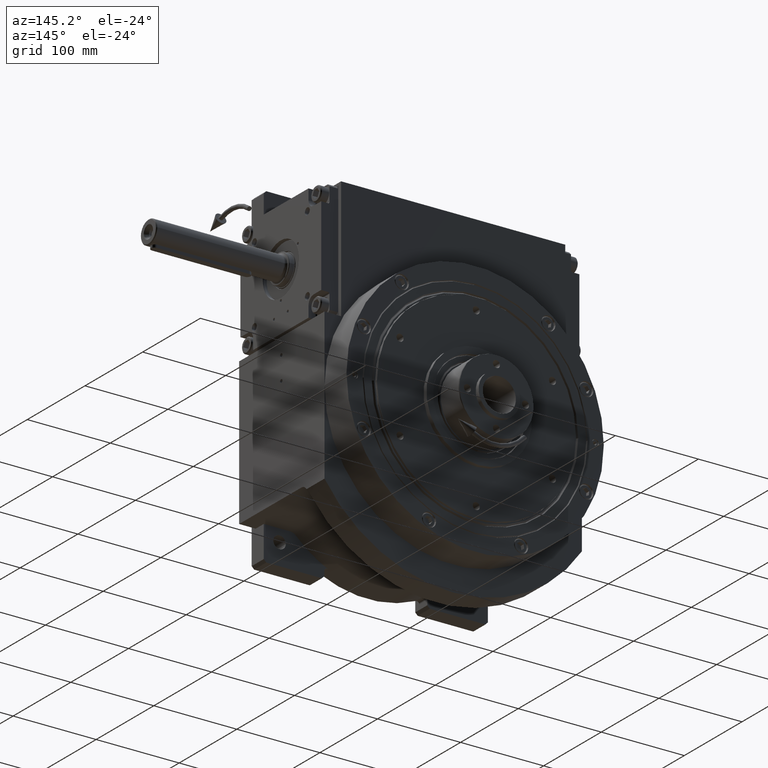
[diagram: clean part render]
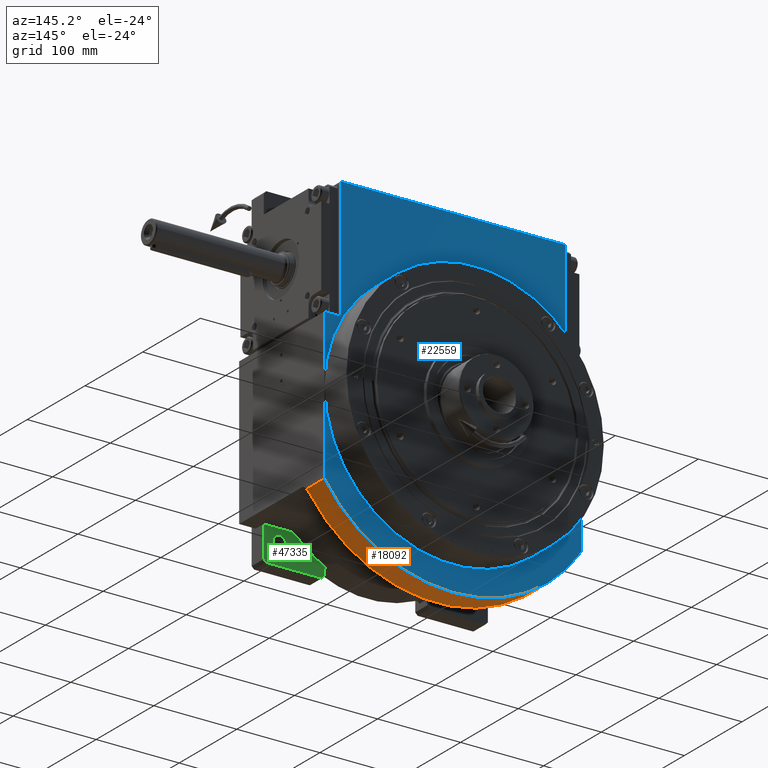
[diagram: same view with three faces highlighted in distinct colors, each labeled with its STEP entity id]
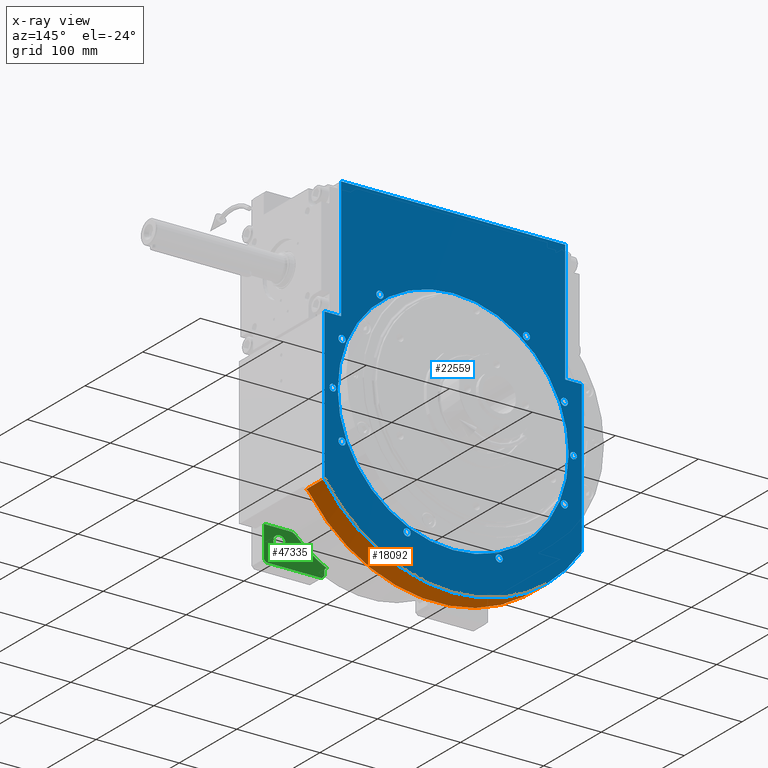
[diagram: x-ray of the same camera — body ghosted, the three highlighted faces saturated]
A machine part, auxiliary view with three faces highlighted in distinct colors.
The next image is the same camera in x-ray (body ghosted, the three faces saturated) — at least one of them is partly hidden behind the body in this view.
Their STEP definitions:

[orange] entity #18092 — the highlighted cylindrical surface (partial cylindrical patch) has radius 185 mm, axis along (0, -1, 0).
#199 = CARTESIAN_POINT ( 'NONE',  ( 0.000000000000000000, 45.00000000000000000, 0.000000000000000000 ) ) ;
#2167 = AXIS2_PLACEMENT_3D ( 'NONE', #2490, #18874, #14610 ) ;
#2490 = CARTESIAN_POINT ( 'NONE',  ( -1.421085471520200056E-14, 75.00000000000000000, 0.000000000000000000 ) ) ;
#3414 = EDGE_CURVE ( 'NONE', #70117, #44482, #34901, .T. ) ;
#3759 = CARTESIAN_POINT ( 'NONE',  ( -155.0000000000000000, 43.65739391084900234, -100.9950493836208096 ) ) ;
#4890 = ORIENTED_EDGE ( 'NONE', *, *, #28996, .T. ) ;
#5717 = DIRECTION ( 'NONE',  ( 1.000000000000000000, 0.000000000000000000, 0.000000000000000000 ) ) ;
#8505 = AXIS2_PLACEMENT_3D ( 'NONE', #53541, #10355, #5717 ) ;
#8507 = EDGE_CURVE ( 'NONE', #36504, #38941, #12736, .T. ) ;
#8683 = EDGE_LOOP ( 'NONE', ( #30133, #10770, #4890, #28166, #38365, #17155 ) ) ;
#9814 = CARTESIAN_POINT ( 'NONE',  ( -153.9568177392173709, 44.56504649577900778, -102.5960511298264777 ) ) ;
#10355 = DIRECTION ( 'NONE',  ( 0.000000000000000000, -1.000000000000000000, 0.000000000000000000 ) ) ;
#10770 = ORIENTED_EDGE ( 'NONE', *, *, #19712, .F. ) ;
#12736 = LINE ( 'NONE', #39869, #52070 ) ;
#14610 = DIRECTION ( 'NONE',  ( 0.8378378378378376068, 0.000000000000000000, -0.5459191858574098388 ) ) ;
#15597 = CARTESIAN_POINT ( 'NONE',  ( 155.0000000000000000, 43.65739391084900234, -100.9950493836205965 ) ) ;
#17155 = ORIENTED_EDGE ( 'NONE', *, *, #8507, .T. ) ;
#18092 = ADVANCED_FACE ( 'NONE', ( #31777 ), #21393, .T. ) ;
#18555 = CARTESIAN_POINT ( 'NONE',  ( 152.8331255023750543, 45.01257560629866106, -104.2665302782841650 ) ) ;
#18874 = DIRECTION ( 'NONE',  ( 0.000000000000000000, 1.000000000000000000, 0.000000000000000000 ) ) ;
#19712 = EDGE_CURVE ( 'NONE', #59823, #29238, #25945, .T. ) ;
#20590 = CARTESIAN_POINT ( 'NONE',  ( -155.0000000000000000, 43.65739391084900234, -100.9950493836208096 ) ) ;
#21393 = CYLINDRICAL_SURFACE ( 'NONE', #8505, 185.0000000000000000 ) ;
#22405 = CARTESIAN_POINT ( 'NONE',  ( 155.0000000000000000, 43.65739391084900234, -100.9950493836208096 ) ) ;
#23201 = CARTESIAN_POINT ( 'NONE',  ( 151.6212386178135034, 45.00000000000000000, -106.0000000000000000 ) ) ;
#25945 = LINE ( 'NONE', #15597, #41659 ) ;
#28166 = ORIENTED_EDGE ( 'NONE', *, *, #3414, .T. ) ;
#28996 = EDGE_CURVE ( 'NONE', #59823, #70117, #34010, .T. ) ;
#29208 = AXIS2_PLACEMENT_3D ( 'NONE', #199, #59771, #59428 ) ;
#29238 = VERTEX_POINT ( 'NONE', #59807 ) ;
#30133 = ORIENTED_EDGE ( 'NONE', *, *, #46047, .F. ) ;
#30603 = CARTESIAN_POINT ( 'NONE',  ( 155.0000000000000000, 43.65739391084900234, -100.9950493836208096 ) ) ;
#31777 = FACE_OUTER_BOUND ( 'NONE', #8683, .T. ) ;
#32295 = CARTESIAN_POINT ( 'NONE',  ( -152.8331263068003523, 45.01258185882932850, -104.2665291276430537 ) ) ;
#32955 = CIRCLE ( 'NONE', #2167, 185.0000000000000853 ) ;
#34010 = B_SPLINE_CURVE_WITH_KNOTS ( 'NONE', 3,
 ( #30603, #44617, #18555, #23201 ),
 .UNSPECIFIED., .F., .F.,
 ( 4, 4 ),
 ( 0.000000000000000000, 1.000000000000000000 ),
 .UNSPECIFIED. ) ;
#34901 = CIRCLE ( 'NONE', #29208, 185.0000000000000000 ) ;
#36468 = CARTESIAN_POINT ( 'NONE',  ( -151.6212386178135034, 45.00000000000000000, -106.0000000000000000 ) ) ;
#36504 = VERTEX_POINT ( 'NONE', #20590 ) ;
#38195 = EDGE_CURVE ( 'NONE', #44482, #36504, #43324, .T. ) ;
#38365 = ORIENTED_EDGE ( 'NONE', *, *, #38195, .T. ) ;
#38941 = VERTEX_POINT ( 'NONE', #55354 ) ;
#39869 = CARTESIAN_POINT ( 'NONE',  ( -155.0000000000000000, 43.65739391084900234, -100.9950493836205965 ) ) ;
#41659 = VECTOR ( 'NONE', #47710, 1000.000000000000000 ) ;
#43324 = B_SPLINE_CURVE_WITH_KNOTS ( 'NONE', 3,
 ( #59034, #32295, #9814, #3759 ),
 .UNSPECIFIED., .F., .F.,
 ( 4, 4 ),
 ( 0.000000000000000000, 1.000000000000000000 ),
 .UNSPECIFIED. ) ;
#44147 = DIRECTION ( 'NONE',  ( 0.000000000000000000, 1.000000000000000000, 0.000000000000000000 ) ) ;
#44482 = VERTEX_POINT ( 'NONE', #36468 ) ;
#44617 = CARTESIAN_POINT ( 'NONE',  ( 153.9568169727738507, 44.56504024324833324, -102.5960523061092573 ) ) ;
#46047 = EDGE_CURVE ( 'NONE', #29238, #38941, #32955, .T. ) ;
#47710 = DIRECTION ( 'NONE',  ( 0.000000000000000000, 1.000000000000000000, -9.068074731744140484E-16 ) ) ;
#52070 = VECTOR ( 'NONE', #44147, 1000.000000000000000 ) ;
#53541 = CARTESIAN_POINT ( 'NONE',  ( -2.057655180072804513E-28, -73.00000000000000000, 0.000000000000000000 ) ) ;
#55354 = CARTESIAN_POINT ( 'NONE',  ( -155.0000000000000000, 75.00000000000000000, -100.9950493836208096 ) ) ;
#59034 = CARTESIAN_POINT ( 'NONE',  ( -151.6212386178135034, 45.00000000000000000, -106.0000000000000000 ) ) ;
#59428 = DIRECTION ( 'NONE',  ( 0.8195742627989930362, 0.000000000000000000, -0.5729729729729730048 ) ) ;
#59771 = DIRECTION ( 'NONE',  ( 0.000000000000000000, 1.000000000000000000, 0.000000000000000000 ) ) ;
#59807 = CARTESIAN_POINT ( 'NONE',  ( 155.0000000000000000, 75.00000000000000000, -100.9950493836208096 ) ) ;
#59823 = VERTEX_POINT ( 'NONE', #22405 ) ;
#65989 = CARTESIAN_POINT ( 'NONE',  ( 151.6212386178135034, 45.00000000000000000, -106.0000000000000000 ) ) ;
#70117 = VERTEX_POINT ( 'NONE', #65989 ) ;

[blue] entity #22559 — the highlighted planar face has unit normal (0, 1, 0).
#363 = FACE_BOUND ( 'NONE', #5491, .T. ) ;
#480 = DIRECTION ( 'NONE',  ( 1.000000000000000000, 0.000000000000000000, 0.000000000000000000 ) ) ;
#707 = CARTESIAN_POINT ( 'NONE',  ( 0.000000000000000000, 75.00000000000000000, 0.000000000000000000 ) ) ;
#791 = VERTEX_POINT ( 'NONE', #60141 ) ;
#1168 = ORIENTED_EDGE ( 'NONE', *, *, #45067, .F. ) ;
#1261 = VERTEX_POINT ( 'NONE', #66455 ) ;
#1560 = EDGE_CURVE ( 'NONE', #28162, #25965, #47200, .T. ) ;
#1706 = VECTOR ( 'NONE', #18986, 1000.000000000000000 ) ;
#2167 = AXIS2_PLACEMENT_3D ( 'NONE', #2490, #18874, #14610 ) ;
#2490 = CARTESIAN_POINT ( 'NONE',  ( -1.421085471520200056E-14, 75.00000000000000000, 0.000000000000000000 ) ) ;
#3020 = CARTESIAN_POINT ( 'NONE',  ( -51.23909769293799599, 75.00000000000000000, -133.9625322141366155 ) ) ;
#3077 = VECTOR ( 'NONE', #42917, 1000.000000000000000 ) ;
#3307 = EDGE_CURVE ( 'NONE', #38327, #24456, #28032, .T. ) ;
#3441 = VERTEX_POINT ( 'NONE', #5919 ) ;
#3495 = AXIS2_PLACEMENT_3D ( 'NONE', #60307, #48187, #37862 ) ;
#3510 = ORIENTED_EDGE ( 'NONE', *, *, #61200, .F. ) ;
#3834 = DIRECTION ( 'NONE',  ( 0.000000000000000000, 1.000000000000000000, 0.000000000000000000 ) ) ;
#3867 = AXIS2_PLACEMENT_3D ( 'NONE', #6151, #27916, #60015 ) ;
#4011 = AXIS2_PLACEMENT_3D ( 'NONE', #31231, #52993, #25502 ) ;
#4167 = EDGE_LOOP ( 'NONE', ( #4284, #59257 ) ) ;
#4284 = ORIENTED_EDGE ( 'NONE', *, *, #27402, .F. ) ;
#4404 = ORIENTED_EDGE ( 'NONE', *, *, #50722, .F. ) ;
#4437 = CARTESIAN_POINT ( 'NONE',  ( -145.0000000000000000, 75.00000000000000000, 0.000000000000000000 ) ) ;
#4619 = CARTESIAN_POINT ( 'NONE',  ( 55.48909769293800309, 75.00000000000000000, -133.9625322141366155 ) ) ;
#4719 = EDGE_CURVE ( 'NONE', #21421, #52695, #64816, .T. ) ;
#4845 = ORIENTED_EDGE ( 'NONE', *, *, #20522, .F. ) ;
#4963 = DIRECTION ( 'NONE',  ( 0.000000000000000000, 1.000000000000000000, 0.000000000000000000 ) ) ;
#5046 = DIRECTION ( 'NONE',  ( 1.000000000000000000, 0.000000000000000000, 0.000000000000000000 ) ) ;
#5491 = EDGE_LOOP ( 'NONE', ( #14094, #56507 ) ) ;
#5678 = DIRECTION ( 'NONE',  ( 0.000000000000000000, 1.000000000000000000, 0.000000000000000000 ) ) ;
#5919 = CARTESIAN_POINT ( 'NONE',  ( 155.0000000000000000, 75.00000000000000000, 80.00000000000000000 ) ) ;
#6013 = DIRECTION ( 'NONE',  ( 1.000000000000000000, 0.000000000000000000, -6.530723674265620862E-15 ) ) ;
#6077 = FACE_BOUND ( 'NONE', #68510, .T. ) ;
#6151 = CARTESIAN_POINT ( 'NONE',  ( 55.48909769293800309, 75.00000000000000000, -133.9625322141366155 ) ) ;
#6840 = DIRECTION ( 'NONE',  ( 0.000000000000000000, 1.000000000000000000, 0.000000000000000000 ) ) ;
#6974 = DIRECTION ( 'NONE',  ( 0.000000000000000000, 1.000000000000000000, 0.000000000000000000 ) ) ;
#6975 = DIRECTION ( 'NONE',  ( 0.000000000000000000, 1.000000000000000000, 0.000000000000000000 ) ) ;
#7011 = DIRECTION ( 'NONE',  ( 0.000000000000000000, 1.000000000000000000, 0.000000000000000000 ) ) ;
#7580 = DIRECTION ( 'NONE',  ( 0.000000000000000000, 0.000000000000000000, 1.000000000000000000 ) ) ;
#7923 = AXIS2_PLACEMENT_3D ( 'NONE', #4437, #26187, #69699 ) ;
#8412 = ORIENTED_EDGE ( 'NONE', *, *, #29342, .F. ) ;
#8647 = VECTOR ( 'NONE', #45526, 1000.000000000000000 ) ;
#9384 = VERTEX_POINT ( 'NONE', #21876 ) ;
#9891 = AXIS2_PLACEMENT_3D ( 'NONE', #18311, #40415, #33676 ) ;
#10024 = FACE_BOUND ( 'NONE', #10962, .T. ) ;
#10033 = CIRCLE ( 'NONE', #19115, 4.250000000000003553 ) ;
#10468 = CARTESIAN_POINT ( 'NONE',  ( 0.000000000000000000, 75.00000000000000000, -6.992960125521008625E-15 ) ) ;
#10553 = EDGE_CURVE ( 'NONE', #52695, #60790, #46216, .T. ) ;
#10591 = CARTESIAN_POINT ( 'NONE',  ( -88.27040720626449399, 75.00000000000000000, 115.0362343422289939 ) ) ;
#10706 = FACE_OUTER_BOUND ( 'NONE', #34912, .T. ) ;
#10962 = EDGE_LOOP ( 'NONE', ( #29212, #60971 ) ) ;
#11175 = DIRECTION ( 'NONE',  ( 0.000000000000000000, 0.000000000000000000, 1.000000000000000000 ) ) ;
#11229 = EDGE_CURVE ( 'NONE', #52781, #67625, #47125, .T. ) ;
#11584 = VECTOR ( 'NONE', #7580, 1000.000000000000000 ) ;
#11612 = CARTESIAN_POINT ( 'NONE',  ( -135.0000000000000000, 75.00000000000000000, 80.00000000000000000 ) ) ;
#11847 = DIRECTION ( 'NONE',  ( 0.000000000000000000, 0.000000000000000000, 1.000000000000000000 ) ) ;
#11899 = CARTESIAN_POINT ( 'NONE',  ( -129.7125322141366155, 75.00000000000000000, 55.48909769293800309 ) ) ;
#12597 = LINE ( 'NONE', #34035, #1706 ) ;
#13068 = AXIS2_PLACEMENT_3D ( 'NONE', #57854, #52874, #31117 ) ;
#14009 = CARTESIAN_POINT ( 'NONE',  ( -92.52040720626450820, 75.00000000000000000, 115.0362343422289939 ) ) ;
#14094 = ORIENTED_EDGE ( 'NONE', *, *, #32834, .F. ) ;
#14223 = CARTESIAN_POINT ( 'NONE',  ( 145.0000000000000000, 75.00000000000000000, -3.999999999999992450 ) ) ;
#14411 = AXIS2_PLACEMENT_3D ( 'NONE', #10468, #54357, #11847 ) ;
#14524 = EDGE_CURVE ( 'NONE', #62786, #20713, #28472, .T. ) ;
#14594 = VECTOR ( 'NONE', #28664, 1000.000000000000000 ) ;
#14610 = DIRECTION ( 'NONE',  ( 0.8378378378378376068, 0.000000000000000000, -0.5459191858574098388 ) ) ;
#15348 = DIRECTION ( 'NONE',  ( 1.000000000000000000, 0.000000000000000000, 0.000000000000000000 ) ) ;
#15445 = VERTEX_POINT ( 'NONE', #62703 ) ;
#15627 = AXIS2_PLACEMENT_3D ( 'NONE', #37164, #64620, #5046 ) ;
#15899 = ORIENTED_EDGE ( 'NONE', *, *, #52951, .F. ) ;
#15928 = CIRCLE ( 'NONE', #7923, 3.999999999999992450 ) ;
#16748 = FACE_BOUND ( 'NONE', #61589, .T. ) ;
#16770 = EDGE_CURVE ( 'NONE', #66410, #21158, #53334, .T. ) ;
#17089 = ORIENTED_EDGE ( 'NONE', *, *, #41845, .T. ) ;
#17246 = CIRCLE ( 'NONE', #44589, 4.250000000000003553 ) ;
#17677 = CARTESIAN_POINT ( 'NONE',  ( 133.9625322141366155, 75.00000000000000000, 55.48909769293800309 ) ) ;
#18279 = LINE ( 'NONE', #62131, #14594 ) ;
#18311 = CARTESIAN_POINT ( 'NONE',  ( -133.9625322141366155, 75.00000000000000000, 55.48909769293800309 ) ) ;
#18874 = DIRECTION ( 'NONE',  ( 0.000000000000000000, 1.000000000000000000, 0.000000000000000000 ) ) ;
#18986 = DIRECTION ( 'NONE',  ( 3.140606279253960088E-16, 0.000000000000000000, -1.000000000000000000 ) ) ;
#19115 = AXIS2_PLACEMENT_3D ( 'NONE', #54885, #4963, #43806 ) ;
#20160 = CARTESIAN_POINT ( 'NONE',  ( 145.0000000000000000, 75.00000000000000000, 3.999999999999992450 ) ) ;
#20522 = EDGE_CURVE ( 'NONE', #24456, #38327, #36123, .T. ) ;
#20713 = VERTEX_POINT ( 'NONE', #36840 ) ;
#20819 = ORIENTED_EDGE ( 'NONE', *, *, #61825, .F. ) ;
#21158 = VERTEX_POINT ( 'NONE', #47453 ) ;
#21163 = LINE ( 'NONE', #25441, #3077 ) ;
#21421 = VERTEX_POINT ( 'NONE', #30169 ) ;
#21876 = CARTESIAN_POINT ( 'NONE',  ( 135.0000000000000000, 75.00000000000000000, 80.00000000000000000 ) ) ;
#21904 = ORIENTED_EDGE ( 'NONE', *, *, #3307, .F. ) ;
#22559 = ADVANCED_FACE ( 'NONE', ( #363, #6077, #65648, #42816, #16748, #64239, #48518, #59586, #10024, #38539, #64968, #10706 ), #60290, .T. ) ;
#22956 = CIRCLE ( 'NONE', #50307, 4.250000000000003553 ) ;
#23348 = CIRCLE ( 'NONE', #13068, 4.250000000000003553 ) ;
#23543 = CARTESIAN_POINT ( 'NONE',  ( -155.0000000000000000, 75.00000000000000000, 80.00000000000000000 ) ) ;
#23701 = DIRECTION ( 'NONE',  ( 1.000000000000000000, 0.000000000000000000, 1.632680918566405215E-15 ) ) ;
#24456 = VERTEX_POINT ( 'NONE', #68976 ) ;
#24654 = ORIENTED_EDGE ( 'NONE', *, *, #32912, .F. ) ;
#24749 = VERTEX_POINT ( 'NONE', #14223 ) ;
#25368 = CARTESIAN_POINT ( 'NONE',  ( -135.0000000000000000, 75.00000000000000000, 226.0000000000000000 ) ) ;
#25433 = CIRCLE ( 'NONE', #52667, 4.250000000000003553 ) ;
#25441 = CARTESIAN_POINT ( 'NONE',  ( 135.0000000000000000, 75.00000000000000000, 80.00000000000000000 ) ) ;
#25502 = DIRECTION ( 'NONE',  ( -1.000000000000000000, 0.000000000000000000, -1.632680918566405215E-15 ) ) ;
#25761 = CARTESIAN_POINT ( 'NONE',  ( -84.02040720626449399, 75.00000000000000000, 115.0362343422289939 ) ) ;
#25920 = EDGE_LOOP ( 'NONE', ( #56345, #20819 ) ) ;
#25965 = VERTEX_POINT ( 'NONE', #54367 ) ;
#25975 = AXIS2_PLACEMENT_3D ( 'NONE', #57781, #52105, #58130 ) ;
#26187 = DIRECTION ( 'NONE',  ( 0.000000000000000000, 1.000000000000000000, -0.000000000000000000 ) ) ;
#26663 = CARTESIAN_POINT ( 'NONE',  ( -133.9625322141366155, 75.00000000000000000, -55.48909769293800309 ) ) ;
#26903 = EDGE_CURVE ( 'NONE', #25965, #28162, #17246, .T. ) ;
#27402 = EDGE_CURVE ( 'NONE', #38614, #60546, #22956, .T. ) ;
#27444 = CARTESIAN_POINT ( 'NONE',  ( -55.48909769293800309, 75.00000000000000000, -133.9625322141366155 ) ) ;
#27646 = EDGE_LOOP ( 'NONE', ( #4404, #3510 ) ) ;
#27916 = DIRECTION ( 'NONE',  ( 0.000000000000000000, 1.000000000000000000, 0.000000000000000000 ) ) ;
#27935 = CARTESIAN_POINT ( 'NONE',  ( 145.0000000000000000, 75.00000000000000000, 0.000000000000000000 ) ) ;
#28032 = CIRCLE ( 'NONE', #31454, 4.250000000000003553 ) ;
#28134 = DIRECTION ( 'NONE',  ( 1.000000000000000000, 0.000000000000000000, -6.530723674265620862E-15 ) ) ;
#28162 = VERTEX_POINT ( 'NONE', #3020 ) ;
#28472 = CIRCLE ( 'NONE', #46682, 4.250000000000003553 ) ;
#28664 = DIRECTION ( 'NONE',  ( 0.000000000000000000, 0.000000000000000000, -1.000000000000000000 ) ) ;
#28675 = LINE ( 'NONE', #45037, #11584 ) ;
#29212 = ORIENTED_EDGE ( 'NONE', *, *, #26903, .F. ) ;
#29238 = VERTEX_POINT ( 'NONE', #59807 ) ;
#29342 = EDGE_CURVE ( 'NONE', #62025, #63334, #25433, .T. ) ;
#29851 = CARTESIAN_POINT ( 'NONE',  ( 1.702259050814821084E-14, 75.00000000000000000, -139.0000000000000000 ) ) ;
#29863 = CARTESIAN_POINT ( 'NONE',  ( 84.02040720626449399, 75.00000000000000000, 115.0362343422289939 ) ) ;
#30019 = ORIENTED_EDGE ( 'NONE', *, *, #46047, .T. ) ;
#30169 = CARTESIAN_POINT ( 'NONE',  ( -135.0000000000000000, 75.00000000000000000, 80.00000000000000000 ) ) ;
#31029 = DIRECTION ( 'NONE',  ( -1.000000000000000000, 0.000000000000000000, 0.000000000000000000 ) ) ;
#31117 = DIRECTION ( 'NONE',  ( 1.000000000000000000, 0.000000000000000000, 1.632680918566405215E-15 ) ) ;
#31231 = CARTESIAN_POINT ( 'NONE',  ( 133.9625322141366155, 75.00000000000000000, -55.48909769293800309 ) ) ;
#31454 = AXIS2_PLACEMENT_3D ( 'NONE', #52344, #41959, #31630 ) ;
#31544 = CIRCLE ( 'NONE', #68001, 3.999999999999992450 ) ;
#31630 = DIRECTION ( 'NONE',  ( 1.000000000000000000, 0.000000000000000000, 1.632680918566405215E-15 ) ) ;
#31943 = ORIENTED_EDGE ( 'NONE', *, *, #10553, .T. ) ;
#32055 = ORIENTED_EDGE ( 'NONE', *, *, #16770, .F. ) ;
#32538 = EDGE_CURVE ( 'NONE', #39557, #24749, #54324, .T. ) ;
#32834 = EDGE_CURVE ( 'NONE', #58927, #69242, #65721, .T. ) ;
#32912 = EDGE_CURVE ( 'NONE', #24749, #39557, #31544, .T. ) ;
#32955 = CIRCLE ( 'NONE', #2167, 185.0000000000000853 ) ;
#33056 = DIRECTION ( 'NONE',  ( 0.000000000000000000, 0.000000000000000000, 1.000000000000000000 ) ) ;
#33068 = CARTESIAN_POINT ( 'NONE',  ( 59.73909769293799599, 75.00000000000000000, -133.9625322141366155 ) ) ;
#33236 = DIRECTION ( 'NONE',  ( 0.000000000000000000, 0.000000000000000000, 1.000000000000000000 ) ) ;
#33676 = DIRECTION ( 'NONE',  ( -1.000000000000000000, 0.000000000000000000, -1.632680918566405215E-15 ) ) ;
#34035 = CARTESIAN_POINT ( 'NONE',  ( 155.0000000000000000, 75.00000000000000000, 80.00000000000000000 ) ) ;
#34912 = EDGE_LOOP ( 'NONE', ( #53924, #17089, #30019, #66476, #35699, #68827, #31943, #66358 ) ) ;
#35393 = EDGE_CURVE ( 'NONE', #40578, #21421, #53322, .T. ) ;
#35699 = ORIENTED_EDGE ( 'NONE', *, *, #35393, .T. ) ;
#36123 = CIRCLE ( 'NONE', #9891, 4.250000000000003553 ) ;
#36379 = CARTESIAN_POINT ( 'NONE',  ( 138.2125322141365871, 75.00000000000000000, -55.48909769293800309 ) ) ;
#36470 = CARTESIAN_POINT ( 'NONE',  ( 51.23909769293799599, 75.00000000000000000, -133.9625322141366155 ) ) ;
#36598 = EDGE_LOOP ( 'NONE', ( #66568, #55534 ) ) ;
#36840 = CARTESIAN_POINT ( 'NONE',  ( -129.7125322141366155, 75.00000000000000000, -55.48909769293800309 ) ) ;
#37131 = AXIS2_PLACEMENT_3D ( 'NONE', #10591, #3834, #54128 ) ;
#37164 = CARTESIAN_POINT ( 'NONE',  ( 88.27040720626449399, 75.00000000000000000, 115.0362343422289939 ) ) ;
#37862 = DIRECTION ( 'NONE',  ( 0.000000000000000000, 0.000000000000000000, -1.000000000000000000 ) ) ;
#38327 = VERTEX_POINT ( 'NONE', #11899 ) ;
#38539 = FACE_BOUND ( 'NONE', #36598, .T. ) ;
#38614 = VERTEX_POINT ( 'NONE', #14009 ) ;
#38941 = VERTEX_POINT ( 'NONE', #55354 ) ;
#39557 = VERTEX_POINT ( 'NONE', #20160 ) ;
#39772 = CARTESIAN_POINT ( 'NONE',  ( 133.9625322141366155, 75.00000000000000000, -55.48909769293800309 ) ) ;
#39855 = CARTESIAN_POINT ( 'NONE',  ( 135.0000000000000000, 75.00000000000000000, 226.0000000000000000 ) ) ;
#39903 = EDGE_CURVE ( 'NONE', #20713, #62786, #23348, .T. ) ;
#40107 = CARTESIAN_POINT ( 'NONE',  ( 145.0000000000000000, 75.00000000000000000, 0.000000000000000000 ) ) ;
#40415 = DIRECTION ( 'NONE',  ( 0.000000000000000000, 1.000000000000000000, 0.000000000000000000 ) ) ;
#40578 = VERTEX_POINT ( 'NONE', #23543 ) ;
#41763 = EDGE_LOOP ( 'NONE', ( #53341, #69678 ) ) ;
#41845 = EDGE_CURVE ( 'NONE', #3441, #29238, #12597, .T. ) ;
#41959 = DIRECTION ( 'NONE',  ( 0.000000000000000000, 1.000000000000000000, 0.000000000000000000 ) ) ;
#42382 = EDGE_CURVE ( 'NONE', #60546, #38614, #65581, .T. ) ;
#42816 = FACE_BOUND ( 'NONE', #4167, .T. ) ;
#42917 = DIRECTION ( 'NONE',  ( 1.000000000000000000, 0.000000000000000000, 0.000000000000000000 ) ) ;
#43082 = DIRECTION ( 'NONE',  ( -1.000000000000000000, 0.000000000000000000, -1.632680918566405215E-15 ) ) ;
#43806 = DIRECTION ( 'NONE',  ( 1.000000000000000000, 0.000000000000000000, 1.632680918566405215E-15 ) ) ;
#43892 = EDGE_CURVE ( 'NONE', #9384, #3441, #21163, .T. ) ;
#44589 = AXIS2_PLACEMENT_3D ( 'NONE', #67956, #56189, #50846 ) ;
#45037 = CARTESIAN_POINT ( 'NONE',  ( -155.0000000000000000, 75.00000000000000000, -100.9950493836208096 ) ) ;
#45067 = EDGE_CURVE ( 'NONE', #63334, #62025, #10033, .T. ) ;
#45526 = DIRECTION ( 'NONE',  ( 1.000000000000000000, 0.000000000000000000, 0.000000000000000000 ) ) ;
#46047 = EDGE_CURVE ( 'NONE', #29238, #38941, #32955, .T. ) ;
#46063 = AXIS2_PLACEMENT_3D ( 'NONE', #39772, #6974, #23701 ) ;
#46216 = LINE ( 'NONE', #56580, #8647 ) ;
#46366 = CIRCLE ( 'NONE', #15627, 4.250000000000003553 ) ;
#46682 = AXIS2_PLACEMENT_3D ( 'NONE', #26663, #48415, #43082 ) ;
#47125 = CIRCLE ( 'NONE', #3867, 4.250000000000003553 ) ;
#47200 = CIRCLE ( 'NONE', #67732, 4.250000000000003553 ) ;
#47453 = CARTESIAN_POINT ( 'NONE',  ( 92.52040720626450820, 75.00000000000000000, 115.0362343422289939 ) ) ;
#47467 = AXIS2_PLACEMENT_3D ( 'NONE', #40107, #6975, #67565 ) ;
#47811 = ORIENTED_EDGE ( 'NONE', *, *, #32538, .F. ) ;
#47884 = EDGE_LOOP ( 'NONE', ( #8412, #1168 ) ) ;
#47951 = CARTESIAN_POINT ( 'NONE',  ( -155.0000000000000000, 75.00000000000000000, 80.00000000000000000 ) ) ;
#48187 = DIRECTION ( 'NONE',  ( 0.000000000000000000, 1.000000000000000000, -0.000000000000000000 ) ) ;
#48415 = DIRECTION ( 'NONE',  ( 0.000000000000000000, 1.000000000000000000, 0.000000000000000000 ) ) ;
#48518 = FACE_BOUND ( 'NONE', #27646, .T. ) ;
#48551 = CARTESIAN_POINT ( 'NONE',  ( 138.2125322141365871, 75.00000000000000000, 55.48909769293800309 ) ) ;
#48911 = VECTOR ( 'NONE', #480, 1000.000000000000000 ) ;
#49208 = EDGE_LOOP ( 'NONE', ( #4845, #21904 ) ) ;
#49526 = DIRECTION ( 'NONE',  ( 0.000000000000000000, 1.000000000000000000, 0.000000000000000000 ) ) ;
#50307 = AXIS2_PLACEMENT_3D ( 'NONE', #58114, #53846, #31029 ) ;
#50327 = CARTESIAN_POINT ( 'NONE',  ( 0.000000000000000000, 75.00000000000000000, -6.992960125521008625E-15 ) ) ;
#50722 = EDGE_CURVE ( 'NONE', #791, #65816, #54142, .T. ) ;
#50846 = DIRECTION ( 'NONE',  ( -1.000000000000000000, 0.000000000000000000, 6.530723674265620862E-15 ) ) ;
#51470 = CARTESIAN_POINT ( 'NONE',  ( 0.000000000000000000, 75.00000000000000000, 139.0000000000000000 ) ) ;
#52105 = DIRECTION ( 'NONE',  ( 0.000000000000000000, 1.000000000000000000, 0.000000000000000000 ) ) ;
#52344 = CARTESIAN_POINT ( 'NONE',  ( -133.9625322141366155, 75.00000000000000000, 55.48909769293800309 ) ) ;
#52667 = AXIS2_PLACEMENT_3D ( 'NONE', #17677, #7011, #60517 ) ;
#52695 = VERTEX_POINT ( 'NONE', #25368 ) ;
#52781 = VERTEX_POINT ( 'NONE', #36470 ) ;
#52874 = DIRECTION ( 'NONE',  ( 0.000000000000000000, 1.000000000000000000, 0.000000000000000000 ) ) ;
#52951 = EDGE_CURVE ( 'NONE', #21158, #66410, #46366, .T. ) ;
#52993 = DIRECTION ( 'NONE',  ( 0.000000000000000000, 1.000000000000000000, 0.000000000000000000 ) ) ;
#53249 = VECTOR ( 'NONE', #33056, 1000.000000000000000 ) ;
#53322 = LINE ( 'NONE', #47951, #48911 ) ;
#53334 = CIRCLE ( 'NONE', #25975, 4.250000000000003553 ) ;
#53341 = ORIENTED_EDGE ( 'NONE', *, *, #65683, .F. ) ;
#53846 = DIRECTION ( 'NONE',  ( 0.000000000000000000, 1.000000000000000000, 0.000000000000000000 ) ) ;
#53924 = ORIENTED_EDGE ( 'NONE', *, *, #43892, .T. ) ;
#54128 = DIRECTION ( 'NONE',  ( 1.000000000000000000, 0.000000000000000000, 0.000000000000000000 ) ) ;
#54142 = CIRCLE ( 'NONE', #4011, 4.250000000000003553 ) ;
#54324 = CIRCLE ( 'NONE', #47467, 3.999999999999992450 ) ;
#54357 = DIRECTION ( 'NONE',  ( 0.000000000000000000, 1.000000000000000000, 0.000000000000000000 ) ) ;
#54367 = CARTESIAN_POINT ( 'NONE',  ( -59.73909769293799599, 75.00000000000000000, -133.9625322141366155 ) ) ;
#54885 = CARTESIAN_POINT ( 'NONE',  ( 133.9625322141366155, 75.00000000000000000, 55.48909769293800309 ) ) ;
#55354 = CARTESIAN_POINT ( 'NONE',  ( -155.0000000000000000, 75.00000000000000000, -100.9950493836208096 ) ) ;
#55534 = ORIENTED_EDGE ( 'NONE', *, *, #39903, .F. ) ;
#56189 = DIRECTION ( 'NONE',  ( 0.000000000000000000, 1.000000000000000000, 0.000000000000000000 ) ) ;
#56345 = ORIENTED_EDGE ( 'NONE', *, *, #11229, .F. ) ;
#56507 = ORIENTED_EDGE ( 'NONE', *, *, #68738, .F. ) ;
#56580 = CARTESIAN_POINT ( 'NONE',  ( -135.0000000000000000, 75.00000000000000000, 226.0000000000000000 ) ) ;
#57208 = EDGE_CURVE ( 'NONE', #15445, #1261, #15928, .T. ) ;
#57781 = CARTESIAN_POINT ( 'NONE',  ( 88.27040720626449399, 75.00000000000000000, 115.0362343422289939 ) ) ;
#57854 = CARTESIAN_POINT ( 'NONE',  ( -133.9625322141366155, 75.00000000000000000, -55.48909769293800309 ) ) ;
#58114 = CARTESIAN_POINT ( 'NONE',  ( -88.27040720626449399, 75.00000000000000000, 115.0362343422289939 ) ) ;
#58130 = DIRECTION ( 'NONE',  ( -1.000000000000000000, 0.000000000000000000, 0.000000000000000000 ) ) ;
#58927 = VERTEX_POINT ( 'NONE', #51470 ) ;
#58950 = EDGE_CURVE ( 'NONE', #38941, #40578, #28675, .T. ) ;
#59257 = ORIENTED_EDGE ( 'NONE', *, *, #42382, .F. ) ;
#59586 = FACE_BOUND ( 'NONE', #25920, .T. ) ;
#59807 = CARTESIAN_POINT ( 'NONE',  ( 155.0000000000000000, 75.00000000000000000, -100.9950493836208096 ) ) ;
#60015 = DIRECTION ( 'NONE',  ( -1.000000000000000000, 0.000000000000000000, 6.530723674265620862E-15 ) ) ;
#60141 = CARTESIAN_POINT ( 'NONE',  ( 129.7125322141366155, 75.00000000000000000, -55.48909769293800309 ) ) ;
#60231 = AXIS2_PLACEMENT_3D ( 'NONE', #4619, #5678, #6013 ) ;
#60290 = PLANE ( 'NONE',  #61365 ) ;
#60307 = CARTESIAN_POINT ( 'NONE',  ( -145.0000000000000000, 75.00000000000000000, 0.000000000000000000 ) ) ;
#60470 = CIRCLE ( 'NONE', #3495, 3.999999999999992450 ) ;
#60517 = DIRECTION ( 'NONE',  ( -1.000000000000000000, 0.000000000000000000, -1.632680918566405215E-15 ) ) ;
#60546 = VERTEX_POINT ( 'NONE', #25761 ) ;
#60790 = VERTEX_POINT ( 'NONE', #39855 ) ;
#60971 = ORIENTED_EDGE ( 'NONE', *, *, #1560, .F. ) ;
#61200 = EDGE_CURVE ( 'NONE', #65816, #791, #67710, .T. ) ;
#61365 = AXIS2_PLACEMENT_3D ( 'NONE', #707, #70292, #15348 ) ;
#61589 = EDGE_LOOP ( 'NONE', ( #32055, #15899 ) ) ;
#61825 = EDGE_CURVE ( 'NONE', #67625, #52781, #63657, .T. ) ;
#62025 = VERTEX_POINT ( 'NONE', #70229 ) ;
#62131 = CARTESIAN_POINT ( 'NONE',  ( 135.0000000000000000, 75.00000000000000000, 226.0000000000000000 ) ) ;
#62703 = CARTESIAN_POINT ( 'NONE',  ( -145.0000000000000000, 75.00000000000000000, -3.999999999999992450 ) ) ;
#62786 = VERTEX_POINT ( 'NONE', #63282 ) ;
#63088 = EDGE_CURVE ( 'NONE', #60790, #9384, #18279, .T. ) ;
#63282 = CARTESIAN_POINT ( 'NONE',  ( -138.2125322141365871, 75.00000000000000000, -55.48909769293800309 ) ) ;
#63334 = VERTEX_POINT ( 'NONE', #48551 ) ;
#63657 = CIRCLE ( 'NONE', #60231, 4.250000000000003553 ) ;
#64194 = AXIS2_PLACEMENT_3D ( 'NONE', #50327, #6840, #33236 ) ;
#64239 = FACE_BOUND ( 'NONE', #47884, .T. ) ;
#64620 = DIRECTION ( 'NONE',  ( 0.000000000000000000, 1.000000000000000000, 0.000000000000000000 ) ) ;
#64699 = DIRECTION ( 'NONE',  ( 0.000000000000000000, 1.000000000000000000, 0.000000000000000000 ) ) ;
#64816 = LINE ( 'NONE', #11612, #53249 ) ;
#64968 = FACE_BOUND ( 'NONE', #49208, .T. ) ;
#65581 = CIRCLE ( 'NONE', #37131, 4.250000000000003553 ) ;
#65648 = FACE_BOUND ( 'NONE', #41763, .T. ) ;
#65683 = EDGE_CURVE ( 'NONE', #1261, #15445, #60470, .T. ) ;
#65721 = CIRCLE ( 'NONE', #14411, 139.0000000000000000 ) ;
#65816 = VERTEX_POINT ( 'NONE', #36379 ) ;
#66358 = ORIENTED_EDGE ( 'NONE', *, *, #63088, .T. ) ;
#66410 = VERTEX_POINT ( 'NONE', #29863 ) ;
#66455 = CARTESIAN_POINT ( 'NONE',  ( -145.0000000000000000, 75.00000000000000000, 3.999999999999992450 ) ) ;
#66476 = ORIENTED_EDGE ( 'NONE', *, *, #58950, .T. ) ;
#66568 = ORIENTED_EDGE ( 'NONE', *, *, #14524, .F. ) ;
#67565 = DIRECTION ( 'NONE',  ( 0.000000000000000000, 0.000000000000000000, 1.000000000000000000 ) ) ;
#67625 = VERTEX_POINT ( 'NONE', #33068 ) ;
#67710 = CIRCLE ( 'NONE', #46063, 4.250000000000003553 ) ;
#67732 = AXIS2_PLACEMENT_3D ( 'NONE', #27444, #49526, #28134 ) ;
#67956 = CARTESIAN_POINT ( 'NONE',  ( -55.48909769293800309, 75.00000000000000000, -133.9625322141366155 ) ) ;
#68001 = AXIS2_PLACEMENT_3D ( 'NONE', #27935, #64699, #11175 ) ;
#68510 = EDGE_LOOP ( 'NONE', ( #47811, #24654 ) ) ;
#68738 = EDGE_CURVE ( 'NONE', #69242, #58927, #69884, .T. ) ;
#68827 = ORIENTED_EDGE ( 'NONE', *, *, #4719, .T. ) ;
#68976 = CARTESIAN_POINT ( 'NONE',  ( -138.2125322141365871, 75.00000000000000000, 55.48909769293800309 ) ) ;
#69242 = VERTEX_POINT ( 'NONE', #29851 ) ;
#69678 = ORIENTED_EDGE ( 'NONE', *, *, #57208, .F. ) ;
#69699 = DIRECTION ( 'NONE',  ( 0.000000000000000000, 0.000000000000000000, -1.000000000000000000 ) ) ;
#69884 = CIRCLE ( 'NONE', #64194, 139.0000000000000000 ) ;
#70229 = CARTESIAN_POINT ( 'NONE',  ( 129.7125322141366155, 75.00000000000000000, 55.48909769293800309 ) ) ;
#70292 = DIRECTION ( 'NONE',  ( -0.000000000000000000, 1.000000000000000000, 0.000000000000000000 ) ) ;

[green] entity #47335 — the highlighted planar face has unit normal (0, -1, 0).
#165 = CARTESIAN_POINT ( 'NONE',  ( 103.2860106694029980, -59.00000000000000000, -96.00000000000000000 ) ) ;
#1419 = EDGE_CURVE ( 'NONE', #52238, #67762, #52792, .T. ) ;
#2261 = VECTOR ( 'NONE', #20657, 1000.000000000000000 ) ;
#3059 = VECTOR ( 'NONE', #52433, 1000.000000000000000 ) ;
#3539 = ORIENTED_EDGE ( 'NONE', *, *, #8003, .T. ) ;
#4966 = LINE ( 'NONE', #41080, #2261 ) ;
#5611 = EDGE_CURVE ( 'NONE', #50795, #37704, #51029, .T. ) ;
#5697 = DIRECTION ( 'NONE',  ( 1.000000000000000000, 0.000000000000000000, 0.000000000000000000 ) ) ;
#6645 = CARTESIAN_POINT ( 'NONE',  ( 132.0000000000000000, -59.00000000000000000, -137.0000000000000000 ) ) ;
#7853 = DIRECTION ( 'NONE',  ( -0.7071067811865474617, 0.000000000000000000, -0.7071067811865474617 ) ) ;
#8003 = EDGE_CURVE ( 'NONE', #62731, #19779, #23526, .T. ) ;
#9278 = ORIENTED_EDGE ( 'NONE', *, *, #35450, .T. ) ;
#10568 = CARTESIAN_POINT ( 'NONE',  ( 135.0000000000000000, -59.00000000000000000, -134.0000000000000000 ) ) ;
#10845 = DIRECTION ( 'NONE',  ( 0.000000000000000000, 1.000000000000000000, 0.000000000000000000 ) ) ;
#11199 = ORIENTED_EDGE ( 'NONE', *, *, #13029, .F. ) ;
#11428 = DIRECTION ( 'NONE',  ( 0.6978784504689377055, 0.000000000000000000, -0.7162162162162165613 ) ) ;
#12157 = CARTESIAN_POINT ( 'NONE',  ( 65.00000000000000000, -59.00000000000000000, -137.0000000000000000 ) ) ;
#12803 = CARTESIAN_POINT ( 'NONE',  ( 96.30722616471339848, -59.00000000000000000, -98.83783783783789545 ) ) ;
#13029 = EDGE_CURVE ( 'NONE', #23486, #19779, #64797, .T. ) ;
#13440 = AXIS2_PLACEMENT_3D ( 'NONE', #64677, #59321, #32223 ) ;
#13480 = AXIS2_PLACEMENT_3D ( 'NONE', #48526, #27150, #11428 ) ;
#15002 = ORIENTED_EDGE ( 'NONE', *, *, #17906, .T. ) ;
#15674 = PLANE ( 'NONE',  #47689 ) ;
#17618 = VECTOR ( 'NONE', #5697, 1000.000000000000000 ) ;
#17798 = CIRCLE ( 'NONE', #57665, 7.499999999999992895 ) ;
#17906 = EDGE_CURVE ( 'NONE', #52238, #23442, #50683, .T. ) ;
#18812 = CARTESIAN_POINT ( 'NONE',  ( 135.0000000000000000, -59.00000000000000000, -96.00000000000000000 ) ) ;
#19779 = VERTEX_POINT ( 'NONE', #63056 ) ;
#20484 = CARTESIAN_POINT ( 'NONE',  ( 62.00000000000000000, -59.00000000000000000, -128.0624847486569990 ) ) ;
#20657 = DIRECTION ( 'NONE',  ( 0.000000000000000000, 0.000000000000000000, 1.000000000000000000 ) ) ;
#22132 = EDGE_CURVE ( 'NONE', #43685, #65432, #64754, .T. ) ;
#23442 = VERTEX_POINT ( 'NONE', #57723 ) ;
#23486 = VERTEX_POINT ( 'NONE', #12803 ) ;
#23526 = CIRCLE ( 'NONE', #69126, 3.000000000000002665 ) ;
#25670 = FACE_BOUND ( 'NONE', #58410, .T. ) ;
#27150 = DIRECTION ( 'NONE',  ( 0.000000000000000000, 1.000000000000000000, 0.000000000000000000 ) ) ;
#28717 = CARTESIAN_POINT ( 'NONE',  ( 65.00000000000000000, -59.00000000000000000, -137.0000000000000000 ) ) ;
#28913 = CARTESIAN_POINT ( 'NONE',  ( 103.2860106694029980, -59.00000000000000000, -96.00000000000000000 ) ) ;
#30417 = VECTOR ( 'NONE', #44259, 1000.000000000000000 ) ;
#30568 = VECTOR ( 'NONE', #7853, 1000.000000000000114 ) ;
#30745 = ORIENTED_EDGE ( 'NONE', *, *, #34784, .T. ) ;
#32207 = ORIENTED_EDGE ( 'NONE', *, *, #52045, .F. ) ;
#32223 = DIRECTION ( 'NONE',  ( -1.000000000000000000, 0.000000000000000000, 0.000000000000000000 ) ) ;
#32301 = EDGE_LOOP ( 'NONE', ( #51353, #3539, #11199, #9278, #33596, #67995, #30745, #45095, #15002 ) ) ;
#32942 = EDGE_CURVE ( 'NONE', #62731, #23442, #63462, .T. ) ;
#33596 = ORIENTED_EDGE ( 'NONE', *, *, #5611, .T. ) ;
#33947 = DIRECTION ( 'NONE',  ( -0.7071067811865474617, 0.000000000000000000, 0.7071067811865474617 ) ) ;
#34347 = CARTESIAN_POINT ( 'NONE',  ( 123.5000000000000000, -59.00000000000000000, -111.0000000000000000 ) ) ;
#34784 = EDGE_CURVE ( 'NONE', #40294, #67762, #40286, .T. ) ;
#34960 = CARTESIAN_POINT ( 'NONE',  ( 135.0000000000000000, -59.00000000000000000, -134.0000000000000000 ) ) ;
#35315 = CARTESIAN_POINT ( 'NONE',  ( 62.00000000000000000, -59.00000000000000000, -128.0624847486569990 ) ) ;
#35450 = EDGE_CURVE ( 'NONE', #23486, #50795, #42073, .T. ) ;
#37093 = DIRECTION ( 'NONE',  ( 0.000000000000000000, -1.000000000000000000, 0.000000000000000000 ) ) ;
#37704 = VERTEX_POINT ( 'NONE', #18812 ) ;
#38005 = DIRECTION ( 'NONE',  ( 0.000000000000000000, 1.000000000000000000, 0.000000000000000000 ) ) ;
#39047 = DIRECTION ( 'NONE',  ( 1.000000000000000000, 0.000000000000000000, 0.000000000000000000 ) ) ;
#40286 = LINE ( 'NONE', #34960, #30568 ) ;
#40294 = VERTEX_POINT ( 'NONE', #10568 ) ;
#41080 = CARTESIAN_POINT ( 'NONE',  ( 135.0000000000000000, -59.00000000000000000, -134.0000000000000000 ) ) ;
#41386 = CARTESIAN_POINT ( 'NONE',  ( 108.5000000000000000, -59.00000000000000000, -111.0000000000000000 ) ) ;
#42073 = CIRCLE ( 'NONE', #56878, 10.00000000000000000 ) ;
#42085 = FACE_OUTER_BOUND ( 'NONE', #32301, .T. ) ;
#43146 = CARTESIAN_POINT ( 'NONE',  ( 0.000000000000000000, -59.00000000000000000, 0.000000000000000000 ) ) ;
#43685 = VERTEX_POINT ( 'NONE', #41386 ) ;
#44259 = DIRECTION ( 'NONE',  ( 1.000000000000000000, 0.000000000000000000, 0.000000000000000000 ) ) ;
#45095 = ORIENTED_EDGE ( 'NONE', *, *, #1419, .F. ) ;
#46607 = ORIENTED_EDGE ( 'NONE', *, *, #22132, .F. ) ;
#46775 = CARTESIAN_POINT ( 'NONE',  ( 59.00000000000000000, -59.00000000000000000, -128.0624847486569990 ) ) ;
#47335 = ADVANCED_FACE ( 'NONE', ( #25670, #42085 ), #15674, .F. ) ;
#47689 = AXIS2_PLACEMENT_3D ( 'NONE', #43146, #37093, #69207 ) ;
#48526 = CARTESIAN_POINT ( 'NONE',  ( 1.421085471520199867E-13, -59.00000000000000000, -2.700062395888380201E-13 ) ) ;
#49351 = CARTESIAN_POINT ( 'NONE',  ( 103.2860106694028133, -59.00000000000000000, -106.0000000000000000 ) ) ;
#50683 = LINE ( 'NONE', #12157, #63096 ) ;
#50795 = VERTEX_POINT ( 'NONE', #165 ) ;
#51029 = LINE ( 'NONE', #28913, #30417 ) ;
#51353 = ORIENTED_EDGE ( 'NONE', *, *, #32942, .F. ) ;
#52045 = EDGE_CURVE ( 'NONE', #65432, #43685, #17798, .T. ) ;
#52238 = VERTEX_POINT ( 'NONE', #28717 ) ;
#52433 = DIRECTION ( 'NONE',  ( 0.000000000000000000, 0.000000000000000000, -1.000000000000000000 ) ) ;
#52792 = LINE ( 'NONE', #58465, #17618 ) ;
#54734 = DIRECTION ( 'NONE',  ( -0.6978784504689486967, 0.000000000000000000, 0.7162162162162061252 ) ) ;
#56878 = AXIS2_PLACEMENT_3D ( 'NONE', #49351, #10845, #54734 ) ;
#57622 = EDGE_CURVE ( 'NONE', #40294, #37704, #4966, .T. ) ;
#57665 = AXIS2_PLACEMENT_3D ( 'NONE', #65461, #38005, #39047 ) ;
#57723 = CARTESIAN_POINT ( 'NONE',  ( 62.00000000000000000, -59.00000000000000000, -134.0000000000000000 ) ) ;
#58410 = EDGE_LOOP ( 'NONE', ( #32207, #46607 ) ) ;
#58465 = CARTESIAN_POINT ( 'NONE',  ( 65.00000000000000000, -59.00000000000000000, -137.0000000000000000 ) ) ;
#59321 = DIRECTION ( 'NONE',  ( 0.000000000000000000, 1.000000000000000000, 0.000000000000000000 ) ) ;
#62731 = VERTEX_POINT ( 'NONE', #20484 ) ;
#63056 = CARTESIAN_POINT ( 'NONE',  ( 57.74468085106380499, -59.00000000000000000, -125.3377510306004012 ) ) ;
#63096 = VECTOR ( 'NONE', #33947, 1000.000000000000114 ) ;
#63190 = DIRECTION ( 'NONE',  ( 1.000000000000000000, 0.000000000000000000, 0.000000000000000000 ) ) ;
#63462 = LINE ( 'NONE', #35315, #3059 ) ;
#64677 = CARTESIAN_POINT ( 'NONE',  ( 116.0000000000000000, -59.00000000000000000, -111.0000000000000000 ) ) ;
#64754 = CIRCLE ( 'NONE', #13440, 7.499999999999992895 ) ;
#64797 = CIRCLE ( 'NONE', #13480, 138.0000000000000853 ) ;
#65432 = VERTEX_POINT ( 'NONE', #34347 ) ;
#65461 = CARTESIAN_POINT ( 'NONE',  ( 116.0000000000000000, -59.00000000000000000, -111.0000000000000000 ) ) ;
#67762 = VERTEX_POINT ( 'NONE', #6645 ) ;
#67995 = ORIENTED_EDGE ( 'NONE', *, *, #57622, .F. ) ;
#69126 = AXIS2_PLACEMENT_3D ( 'NONE', #46775, #69617, #63190 ) ;
#69207 = DIRECTION ( 'NONE',  ( -1.000000000000000000, 0.000000000000000000, 0.000000000000000000 ) ) ;
#69617 = DIRECTION ( 'NONE',  ( 0.000000000000000000, -1.000000000000000000, 0.000000000000000000 ) ) ;